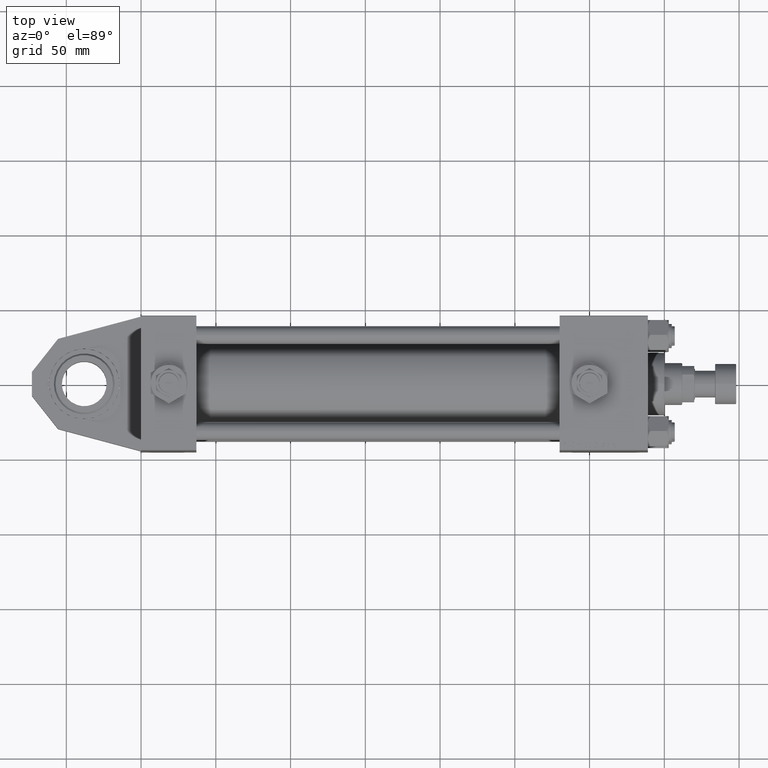
[diagram: clean part render]
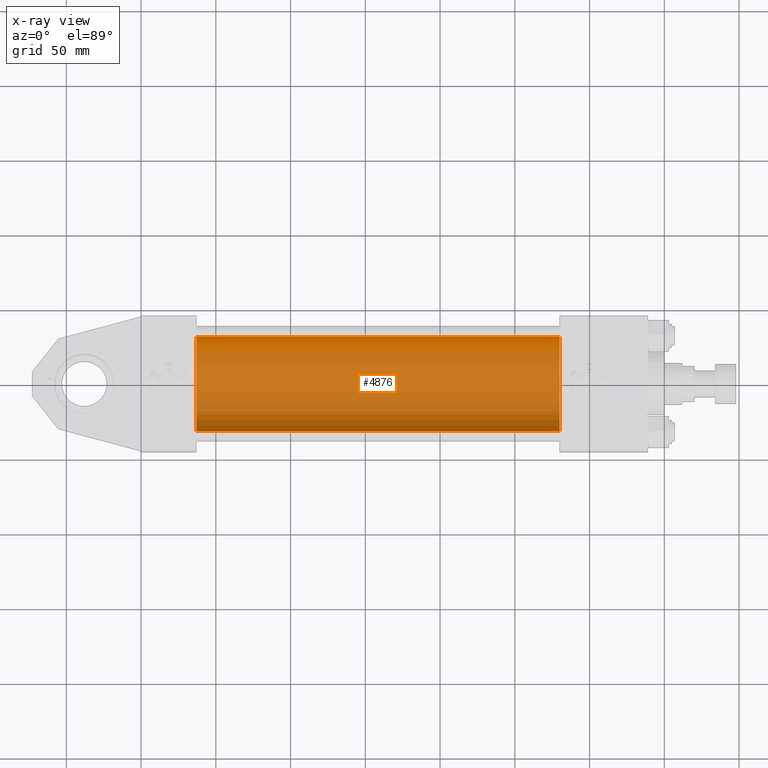
[diagram: x-ray — body ghosted, one internal face saturated and labeled with its STEP entity id]
A machine part, top view, then the same camera in x-ray: the body is ghosted and one INTERNAL B-rep face — a face not visible from any outside direction — is saturated and labeled: STEP entity #4876.
In plain terms, the highlighted cylindrical surface (partial cylindrical patch) has radius 31.5 mm, axis along (-1, 0, -0).
Its self-contained STEP definition (entity closure, byte-faithful):
#263 = DIRECTION ( 'NONE',  ( 0.000000000000000000, 0.000000000000000000, -1.000000000000000000 ) ) ;
#893 = ORIENTED_EDGE ( 'NONE', *, *, #23055, .T. ) ;
#2324 = CARTESIAN_POINT ( 'NONE',  ( 279.9999999999999432, 1.255552203348951850E-15, -31.50000000000000000 ) ) ;
#2672 = LINE ( 'NONE', #15706, #2829 ) ;
#2829 = VECTOR ( 'NONE', #31957, 1000.000000000000000 ) ;
#4589 = VERTEX_POINT ( 'NONE', #23620 ) ;
#4876 = ADVANCED_FACE ( 'NONE', ( #13472 ), #26772, .F. ) ;
#5077 = VERTEX_POINT ( 'NONE', #5935 ) ;
#5112 = LINE ( 'NONE', #21629, #24115 ) ;
#5935 = CARTESIAN_POINT ( 'NONE',  ( 279.9999999999999432, -2.602085213965210642E-15, 31.50000000000000000 ) ) ;
#9311 = DIRECTION ( 'NONE',  ( 1.000000000000000000, 0.000000000000000000, 0.000000000000000000 ) ) ;
#9471 = EDGE_LOOP ( 'NONE', ( #893, #36234, #24649, #22849 ) ) ;
#9636 = DIRECTION ( 'NONE',  ( -1.000000000000000000, -0.000000000000000000, -0.000000000000000000 ) ) ;
#12443 = CARTESIAN_POINT ( 'NONE',  ( 37.00000000000000000, -2.602085213965210642E-15, 0.000000000000000000 ) ) ;
#13472 = FACE_OUTER_BOUND ( 'NONE', #9471, .T. ) ;
#15706 = CARTESIAN_POINT ( 'NONE',  ( 279.9999999999999432, -2.602085213965210642E-15, 31.50000000000000000 ) ) ;
#19280 = VERTEX_POINT ( 'NONE', #2324 ) ;
#21629 = CARTESIAN_POINT ( 'NONE',  ( 279.9999999999999432, 1.255552203348951850E-15, -31.50000000000000000 ) ) ;
#22566 = EDGE_CURVE ( 'NONE', #24972, #4589, #28166, .T. ) ;
#22849 = ORIENTED_EDGE ( 'NONE', *, *, #47160, .F. ) ;
#23040 = CIRCLE ( 'NONE', #38382, 31.50000000000000000 ) ;
#23055 = EDGE_CURVE ( 'NONE', #5077, #19280, #23040, .T. ) ;
#23620 = CARTESIAN_POINT ( 'NONE',  ( 37.00000000000000000, 1.255552203348951850E-15, -31.50000000000000000 ) ) ;
#24115 = VECTOR ( 'NONE', #9636, 1000.000000000000000 ) ;
#24649 = ORIENTED_EDGE ( 'NONE', *, *, #22566, .F. ) ;
#24972 = VERTEX_POINT ( 'NONE', #47905 ) ;
#26772 = CYLINDRICAL_SURFACE ( 'NONE', #36134, 31.50000000000000000 ) ;
#28166 = CIRCLE ( 'NONE', #46017, 31.50000000000000000 ) ;
#28435 = DIRECTION ( 'NONE',  ( 0.000000000000000000, 0.000000000000000000, -1.000000000000000000 ) ) ;
#29718 = CARTESIAN_POINT ( 'NONE',  ( 279.9999999999999432, -2.602085213965210642E-15, 0.000000000000000000 ) ) ;
#31957 = DIRECTION ( 'NONE',  ( -1.000000000000000000, -0.000000000000000000, -0.000000000000000000 ) ) ;
#34261 = DIRECTION ( 'NONE',  ( -1.000000000000000000, -0.000000000000000000, -0.000000000000000000 ) ) ;
#36134 = AXIS2_PLACEMENT_3D ( 'NONE', #29718, #34261, #46767 ) ;
#36234 = ORIENTED_EDGE ( 'NONE', *, *, #43681, .T. ) ;
#37572 = CARTESIAN_POINT ( 'NONE',  ( 279.9999999999999432, -2.602085213965210642E-15, 0.000000000000000000 ) ) ;
#38382 = AXIS2_PLACEMENT_3D ( 'NONE', #37572, #9311, #263 ) ;
#43681 = EDGE_CURVE ( 'NONE', #19280, #4589, #5112, .T. ) ;
#46017 = AXIS2_PLACEMENT_3D ( 'NONE', #12443, #48693, #28435 ) ;
#46767 = DIRECTION ( 'NONE',  ( 0.000000000000000000, 0.000000000000000000, 1.000000000000000000 ) ) ;
#47160 = EDGE_CURVE ( 'NONE', #5077, #24972, #2672, .T. ) ;
#47905 = CARTESIAN_POINT ( 'NONE',  ( 37.00000000000000000, -2.602085213965210642E-15, 31.50000000000000000 ) ) ;
#48693 = DIRECTION ( 'NONE',  ( 1.000000000000000000, 0.000000000000000000, 0.000000000000000000 ) ) ;